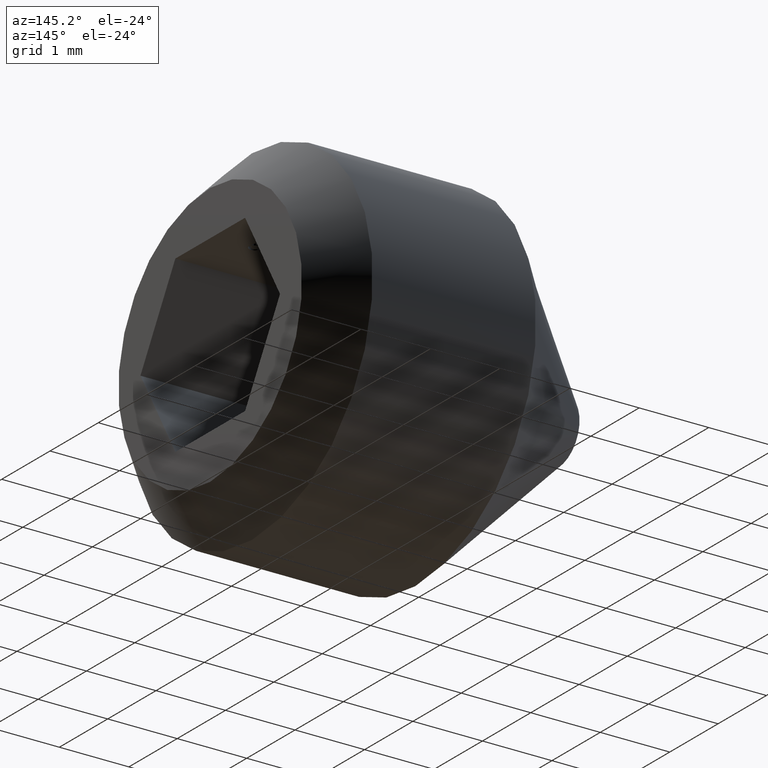
[diagram: clean part render]
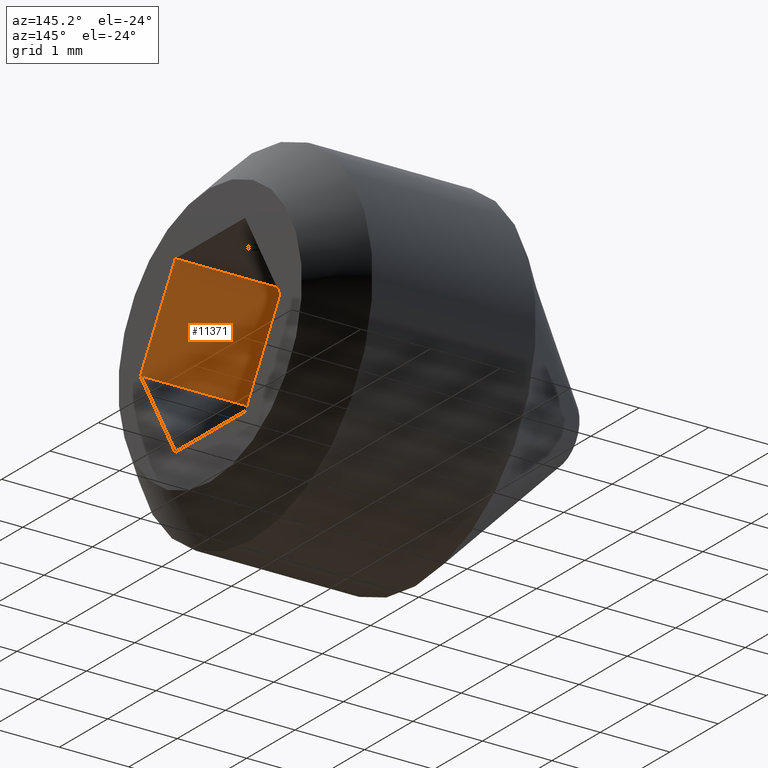
[diagram: same view with one face highlighted and labeled with its STEP entity id]
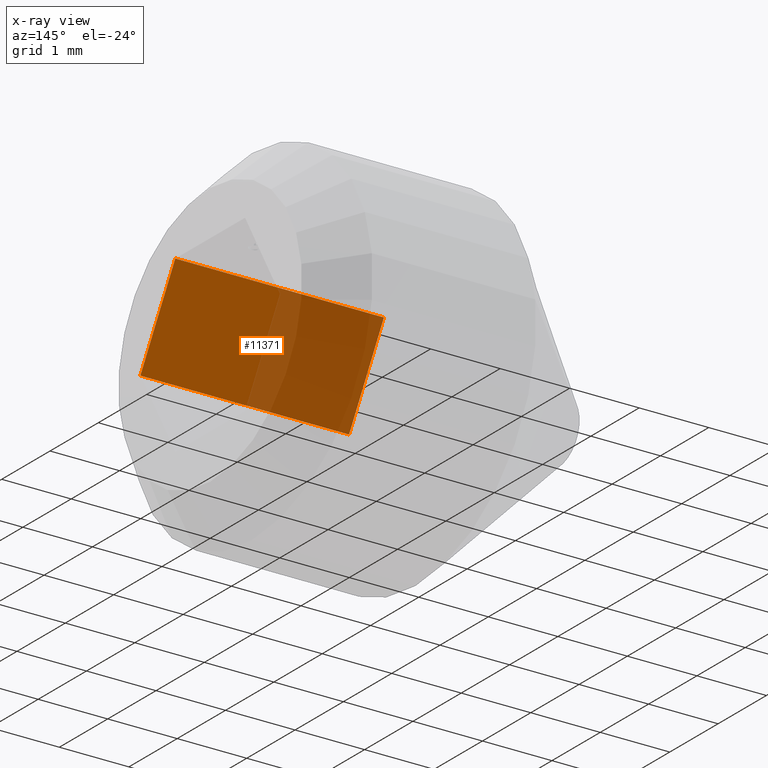
[diagram: x-ray of the same camera — body ghosted, the highlighted face saturated]
A machine part, auxiliary view. The second image highlights one B-rep face of the part: STEP entity #11371.
The next image is the same camera in x-ray: the body ghosted, the highlighted face saturated — about 49% of this face is hidden behind the body in this view.
In plain terms, the highlighted planar face has unit normal (-0, -0.866, 0.5).
Its self-contained STEP definition (entity closure, byte-faithful):
#349 = VECTOR ( 'NONE', #3738, 1000.000000000000000 ) ;
#489 = LINE ( 'NONE', #3611, #10572 ) ;
#954 = DIRECTION ( 'NONE',  ( 0.0000000000000000000, -0.5000000000000001100, -0.8660254037844386000 ) ) ;
#1392 = CARTESIAN_POINT ( 'NONE',  ( 5.000000000000000000, -0.7216878364870322700, 1.249999999999999800 ) ) ;
#1586 = CARTESIAN_POINT ( 'NONE',  ( 2.000000000000000000, -0.7216878364870322700, 1.249999999999999600 ) ) ;
#1857 = VECTOR ( 'NONE', #5852, 1000.000000000000000 ) ;
#3062 = CARTESIAN_POINT ( 'NONE',  ( 2.000000000000000000, -0.7216878364870322700, 1.249999999999999600 ) ) ;
#3386 = ORIENTED_EDGE ( 'NONE', *, *, #6418, .T. ) ;
#3466 = CARTESIAN_POINT ( 'NONE',  ( 2.000000000000000000, -1.443375672974064300, 2.535389781714670200E-016 ) ) ;
#3547 = CARTESIAN_POINT ( 'NONE',  ( 2.000000000000000000, -0.7216878364870322700, 1.249999999999999600 ) ) ;
#3611 = CARTESIAN_POINT ( 'NONE',  ( 2.000000000000000000, -1.443375672974064300, 2.535389781714670200E-016 ) ) ;
#3738 = DIRECTION ( 'NONE',  ( 1.000000000000000000, -0.0000000000000000000, 6.123031769111886300E-017 ) ) ;
#4646 = VERTEX_POINT ( 'NONE', #3062 ) ;
#4670 = ORIENTED_EDGE ( 'NONE', *, *, #7219, .F. ) ;
#4972 = VERTEX_POINT ( 'NONE', #3466 ) ;
#4985 = EDGE_CURVE ( 'NONE', #4646, #4972, #5999, .T. ) ;
#5587 = AXIS2_PLACEMENT_3D ( 'NONE', #1586, #7898, #6221 ) ;
#5852 = DIRECTION ( 'NONE',  ( 0.0000000000000000000, -0.5000000000000001100, -0.8660254037844386000 ) ) ;
#5999 = LINE ( 'NONE', #6988, #9736 ) ;
#6221 = DIRECTION ( 'NONE',  ( 0.0000000000000000000, -0.5000000000000001100, -0.8660254037844386000 ) ) ;
#6418 = EDGE_CURVE ( 'NONE', #4646, #8305, #9294, .T. ) ;
#6988 = CARTESIAN_POINT ( 'NONE',  ( 2.000000000000000000, -0.7216878364870322700, 1.249999999999999600 ) ) ;
#7219 = EDGE_CURVE ( 'NONE', #4972, #10064, #489, .T. ) ;
#7898 = DIRECTION ( 'NONE',  ( -3.061515884555943800E-017, -0.8660254037844386000, 0.5000000000000001100 ) ) ;
#7938 = PLANE ( 'NONE',  #5587 ) ;
#8042 = LINE ( 'NONE', #1392, #1857 ) ;
#8305 = VERTEX_POINT ( 'NONE', #9436 ) ;
#9223 = EDGE_CURVE ( 'NONE', #8305, #10064, #8042, .T. ) ;
#9294 = LINE ( 'NONE', #3547, #349 ) ;
#9436 = CARTESIAN_POINT ( 'NONE',  ( 5.000000000000000000, -0.7216878364870322700, 1.249999999999999800 ) ) ;
#9554 = FACE_OUTER_BOUND ( 'NONE', #11001, .T. ) ;
#9736 = VECTOR ( 'NONE', #954, 1000.000000000000000 ) ;
#9822 = CARTESIAN_POINT ( 'NONE',  ( 5.000000000000000000, -1.443375672974064300, 4.336808689942017700E-016 ) ) ;
#10064 = VERTEX_POINT ( 'NONE', #9822 ) ;
#10572 = VECTOR ( 'NONE', #10678, 1000.000000000000000 ) ;
#10678 = DIRECTION ( 'NONE',  ( 1.000000000000000000, -0.0000000000000000000, 6.123031769111886300E-017 ) ) ;
#10805 = ORIENTED_EDGE ( 'NONE', *, *, #9223, .T. ) ;
#11001 = EDGE_LOOP ( 'NONE', ( #10805, #4670, #11074, #3386 ) ) ;
#11074 = ORIENTED_EDGE ( 'NONE', *, *, #4985, .F. ) ;
#11371 = ADVANCED_FACE ( 'NONE', ( #9554 ), #7938, .F. ) ;